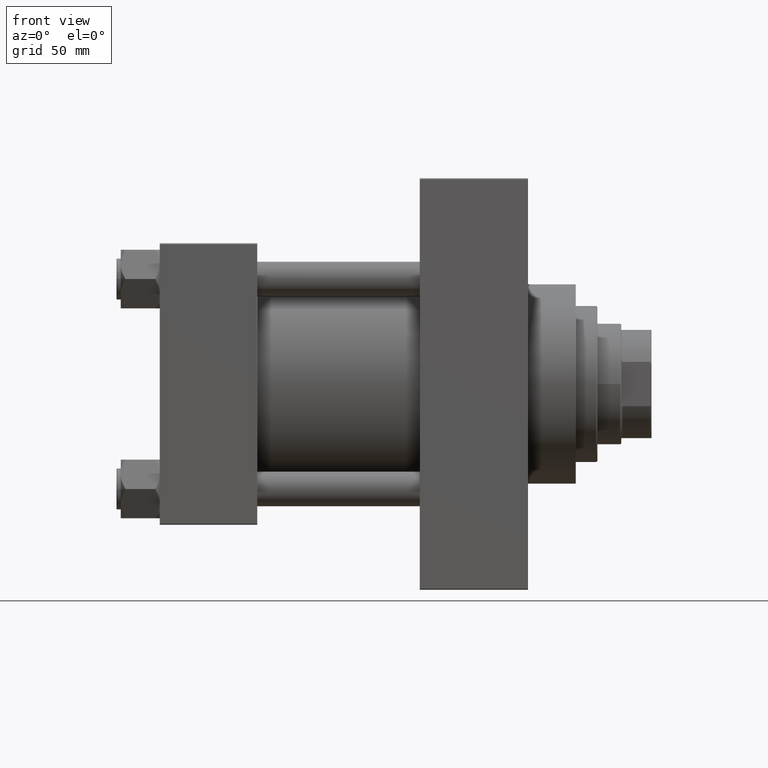
[diagram: clean part render]
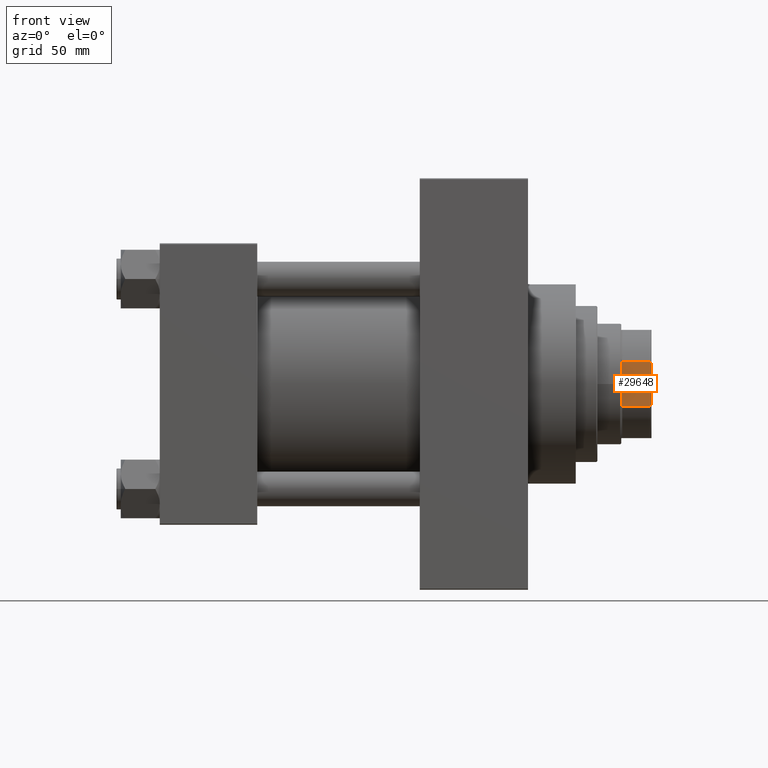
[diagram: same view with one face highlighted and labeled with its STEP entity id]
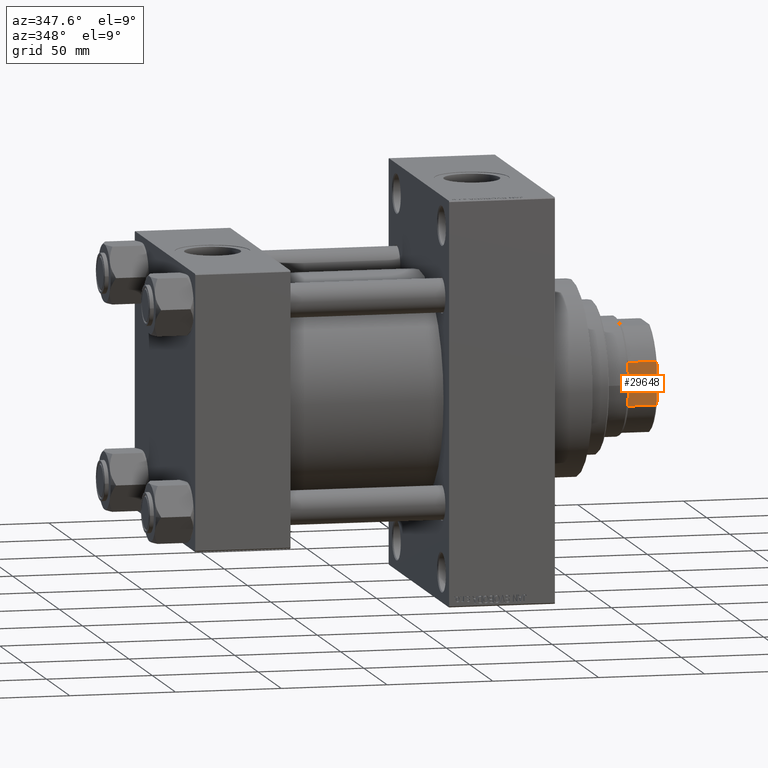
[diagram: same view with one face highlighted and labeled with its STEP entity id]
A machine part, front view. The second image highlights one B-rep face of the part: STEP entity #29648.
A second angle (auxiliary view) of the same face is appended — the face is thin or edge-on in the first view.
In plain terms, the highlighted planar face has unit normal (0, 1, 0).
Its self-contained STEP definition (entity closure, byte-faithful):
#196 = VECTOR ( 'NONE', #15934, 1000.000000000000000 ) ;
#204 = DIRECTION ( 'NONE',  ( -0.000000000000000000, -0.000000000000000000, 1.000000000000000000 ) ) ;
#2410 = B_SPLINE_CURVE_WITH_KNOTS ( 'NONE', 3,
 ( #17136, #42939, #39314, #10138 ),
 .UNSPECIFIED., .F., .F.,
 ( 4, 4 ),
 ( 0.1647287901251752174, 0.1660497543515096208 ),
 .UNSPECIFIED. ) ;
#2837 = EDGE_CURVE ( 'NONE', #7241, #7847, #6037, .T. ) ;
#3343 = ORIENTED_EDGE ( 'NONE', *, *, #35146, .F. ) ;
#5450 = ORIENTED_EDGE ( 'NONE', *, *, #11921, .F. ) ;
#6037 = LINE ( 'NONE', #42941, #13484 ) ;
#6168 = ORIENTED_EDGE ( 'NONE', *, *, #6214, .T. ) ;
#6214 = EDGE_CURVE ( 'NONE', #39419, #33687, #39632, .T. ) ;
#7158 = CARTESIAN_POINT ( 'NONE',  ( 25.00000000000000355, -8.789197915623319091, 182.0000000000000284 ) ) ;
#7241 = VERTEX_POINT ( 'NONE', #16069 ) ;
#7509 = LINE ( 'NONE', #47781, #12497 ) ;
#7847 = VERTEX_POINT ( 'NONE', #46347 ) ;
#8172 = VERTEX_POINT ( 'NONE', #37338 ) ;
#9953 = VERTEX_POINT ( 'NONE', #11662 ) ;
#10138 = CARTESIAN_POINT ( 'NONE',  ( 25.00000000000000000, 10.19803902718555655, 168.4999999999999716 ) ) ;
#11018 = CARTESIAN_POINT ( 'NONE',  ( 25.00000000000000355, -9.731776668925965268, 181.6761096935717887 ) ) ;
#11662 = CARTESIAN_POINT ( 'NONE',  ( 25.00000000000000000, 10.19803902718555655, 181.4999999999999716 ) ) ;
#11921 = EDGE_CURVE ( 'NONE', #39419, #46636, #46631, .T. ) ;
#12497 = VECTOR ( 'NONE', #204, 1000.000000000000000 ) ;
#13484 = VECTOR ( 'NONE', #39078, 1000.000000000000000 ) ;
#14426 = VECTOR ( 'NONE', #22269, 1000.000000000000000 ) ;
#15934 = DIRECTION ( 'NONE',  ( -0.000000000000000000, -0.000000000000000000, 1.000000000000000000 ) ) ;
#16069 = CARTESIAN_POINT ( 'NONE',  ( 25.00000000000000000, -11.45643923738950853, 168.0000000000000000 ) ) ;
#17136 = CARTESIAN_POINT ( 'NONE',  ( 25.00000000000000000, 11.45643923738950321, 168.0000000000000000 ) ) ;
#17908 = FACE_OUTER_BOUND ( 'NONE', #25510, .T. ) ;
#19718 = B_SPLINE_CURVE_WITH_KNOTS ( 'NONE', 3,
 ( #38670, #20344, #35061, #35307 ),
 .UNSPECIFIED., .F., .F.,
 ( 4, 4 ),
 ( 0.000000000000000000, 0.001494935877430185554 ),
 .UNSPECIFIED. ) ;
#19925 = ORIENTED_EDGE ( 'NONE', *, *, #36285, .T. ) ;
#20344 = CARTESIAN_POINT ( 'NONE',  ( 25.00000000000000000, 9.731776668925965268, 181.6761096935717887 ) ) ;
#21275 = DIRECTION ( 'NONE',  ( -1.000000000000000000, -1.387778780781445922E-16, 0.000000000000000000 ) ) ;
#21618 = CARTESIAN_POINT ( 'NONE',  ( 25.00000000000000000, 10.19803902718555655, 168.4999999999999716 ) ) ;
#21867 = CARTESIAN_POINT ( 'NONE',  ( 24.99999999999999645, -10.19803902718556188, 181.4999999999999716 ) ) ;
#22269 = DIRECTION ( 'NONE',  ( -1.387778780781445676E-16, 1.000000000000000000, -0.000000000000000000 ) ) ;
#25510 = EDGE_LOOP ( 'NONE', ( #42608, #19925, #5450, #6168, #3343, #36162, #37125, #36662 ) ) ;
#25542 = CARTESIAN_POINT ( 'NONE',  ( 24.99999999999999645, -10.19803902718556188, 168.4999999999999716 ) ) ;
#25903 = CARTESIAN_POINT ( 'NONE',  ( 24.99999999999999645, -10.19803902718556188, 181.4999999999999716 ) ) ;
#26477 = EDGE_CURVE ( 'NONE', #8172, #7241, #29044, .T. ) ;
#27333 = EDGE_CURVE ( 'NONE', #7847, #42117, #2410, .T. ) ;
#28678 = CARTESIAN_POINT ( 'NONE',  ( 25.00000000000000000, -11.04060662979862073, 168.1732349455196527 ) ) ;
#28763 = DIRECTION ( 'NONE',  ( 1.387778780781445922E-16, -1.000000000000000000, 0.000000000000000000 ) ) ;
#29010 = CARTESIAN_POINT ( 'NONE',  ( 25.00000000000000000, 25.00000000000000000, 182.0000000000000284 ) ) ;
#29044 = B_SPLINE_CURVE_WITH_KNOTS ( 'NONE', 3,
 ( #25542, #40230, #28678, #36623 ),
 .UNSPECIFIED., .F., .F.,
 ( 4, 4 ),
 ( 0.1381499934424540721, 0.1395069277634994331 ),
 .UNSPECIFIED. ) ;
#29090 = EDGE_CURVE ( 'NONE', #42117, #9953, #7509, .T. ) ;
#29648 = ADVANCED_FACE ( 'NONE', ( #17908 ), #35998, .F. ) ;
#31750 = CARTESIAN_POINT ( 'NONE',  ( 25.00000000000000355, 8.789197915623326196, 182.0000000000000284 ) ) ;
#33687 = VERTEX_POINT ( 'NONE', #25903 ) ;
#35061 = CARTESIAN_POINT ( 'NONE',  ( 25.00000000000000355, 9.262276112429317365, 181.8430951735360850 ) ) ;
#35146 = EDGE_CURVE ( 'NONE', #8172, #33687, #46056, .T. ) ;
#35307 = CARTESIAN_POINT ( 'NONE',  ( 25.00000000000000355, 8.789197915623326196, 182.0000000000000284 ) ) ;
#35998 = PLANE ( 'NONE',  #39456 ) ;
#36162 = ORIENTED_EDGE ( 'NONE', *, *, #26477, .T. ) ;
#36285 = EDGE_CURVE ( 'NONE', #9953, #46636, #19718, .T. ) ;
#36351 = CARTESIAN_POINT ( 'NONE',  ( 25.00000000000000355, -9.262276112429315589, 181.8430951735360850 ) ) ;
#36623 = CARTESIAN_POINT ( 'NONE',  ( 25.00000000000000000, -11.45643923738950853, 168.0000000000000000 ) ) ;
#36662 = ORIENTED_EDGE ( 'NONE', *, *, #27333, .T. ) ;
#37125 = ORIENTED_EDGE ( 'NONE', *, *, #2837, .T. ) ;
#37338 = CARTESIAN_POINT ( 'NONE',  ( 24.99999999999999645, -10.19803902718556188, 168.4999999999999716 ) ) ;
#38670 = CARTESIAN_POINT ( 'NONE',  ( 25.00000000000000000, 10.19803902718555655, 181.4999999999999716 ) ) ;
#39078 = DIRECTION ( 'NONE',  ( -1.387778780781445676E-16, 1.000000000000000000, -0.000000000000000000 ) ) ;
#39314 = CARTESIAN_POINT ( 'NONE',  ( 25.00000000000000000, 10.62024046413083944, 168.3405323432851048 ) ) ;
#39419 = VERTEX_POINT ( 'NONE', #43024 ) ;
#39456 = AXIS2_PLACEMENT_3D ( 'NONE', #29010, #21275, #28763 ) ;
#39632 = B_SPLINE_CURVE_WITH_KNOTS ( 'NONE', 3,
 ( #7158, #36351, #11018, #21867 ),
 .UNSPECIFIED., .F., .F.,
 ( 4, 4 ),
 ( 0.000000000000000000, 0.001494935877430197046 ),
 .UNSPECIFIED. ) ;
#40230 = CARTESIAN_POINT ( 'NONE',  ( 25.00000000000000000, -10.62127307377211061, 168.3401423213065300 ) ) ;
#42117 = VERTEX_POINT ( 'NONE', #21618 ) ;
#42608 = ORIENTED_EDGE ( 'NONE', *, *, #29090, .T. ) ;
#42939 = CARTESIAN_POINT ( 'NONE',  ( 25.00000000000000000, 11.03962323054932249, 168.1736446274740331 ) ) ;
#42941 = CARTESIAN_POINT ( 'NONE',  ( 25.00000000000000000, 25.00000000000000000, 168.0000000000000000 ) ) ;
#43024 = CARTESIAN_POINT ( 'NONE',  ( 25.00000000000000355, -8.789197915623319091, 182.0000000000000284 ) ) ;
#43739 = CARTESIAN_POINT ( 'NONE',  ( 25.00000000000000000, 25.00000000000000000, 182.0000000000000284 ) ) ;
#45812 = CARTESIAN_POINT ( 'NONE',  ( 24.99999999999999645, -10.19803902718556188, -0.001000000000001000089 ) ) ;
#46056 = LINE ( 'NONE', #45812, #196 ) ;
#46347 = CARTESIAN_POINT ( 'NONE',  ( 25.00000000000000000, 11.45643923738950321, 168.0000000000000000 ) ) ;
#46631 = LINE ( 'NONE', #43739, #14426 ) ;
#46636 = VERTEX_POINT ( 'NONE', #31750 ) ;
#47781 = CARTESIAN_POINT ( 'NONE',  ( 25.00000000000000000, 10.19803902718555655, -0.001000000000001000089 ) ) ;